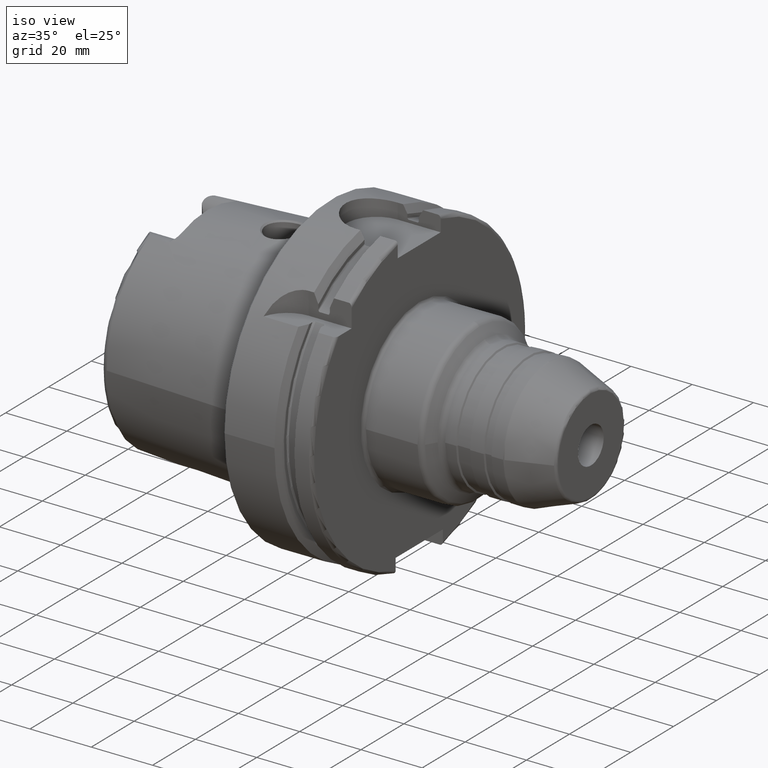
[diagram: clean part render]
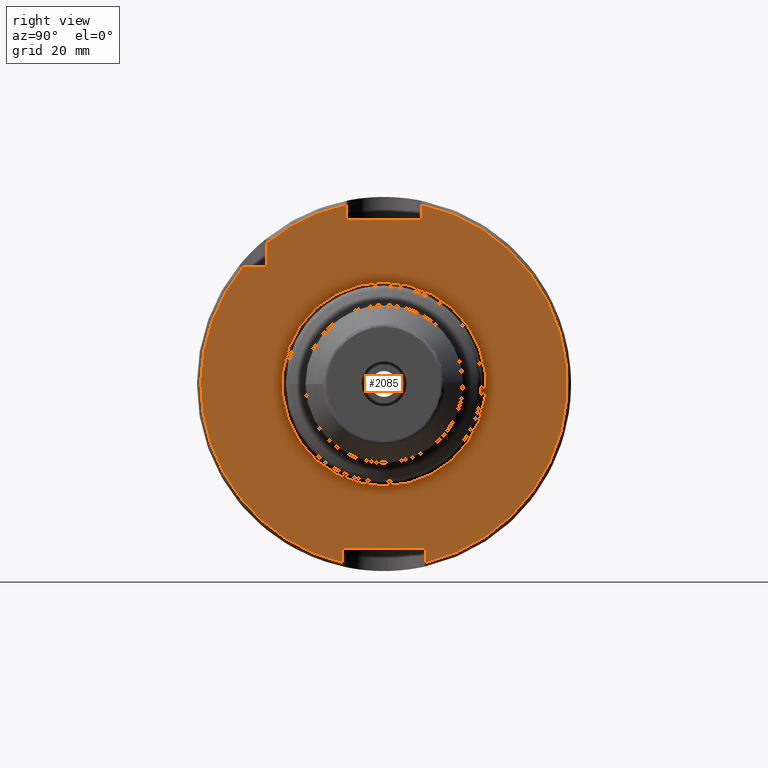
[diagram: tour spotlight — one face highlighted and labeled with its STEP entity id]
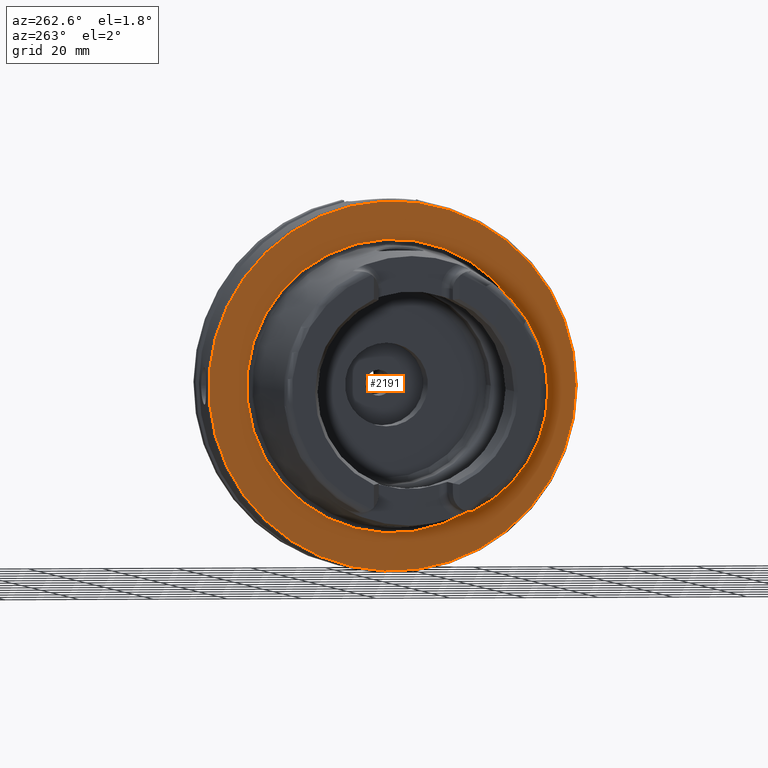
[diagram: tour spotlight — one face highlighted and labeled with its STEP entity id]
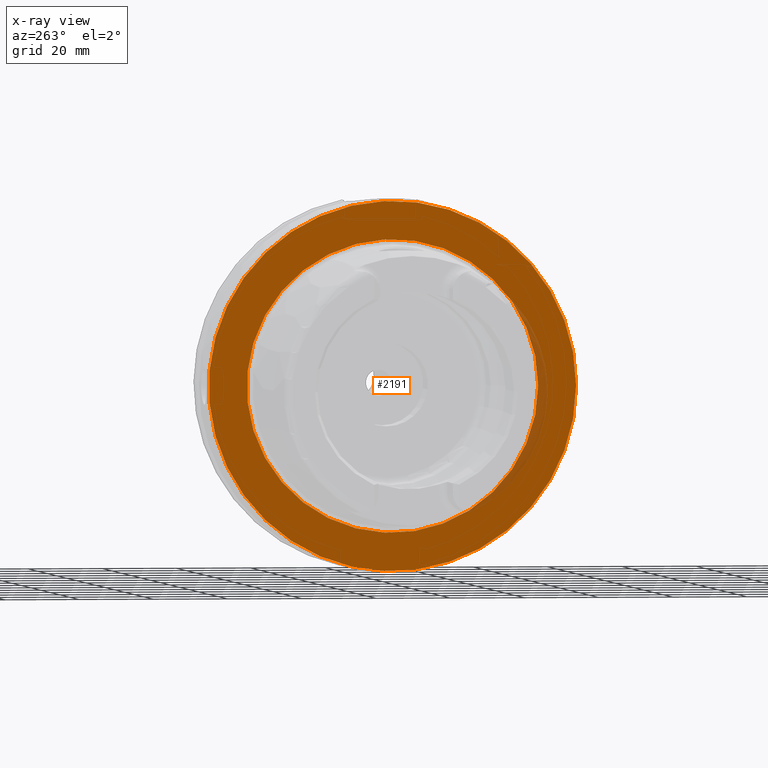
[diagram: x-ray of the same camera — body ghosted, this tour face saturated]
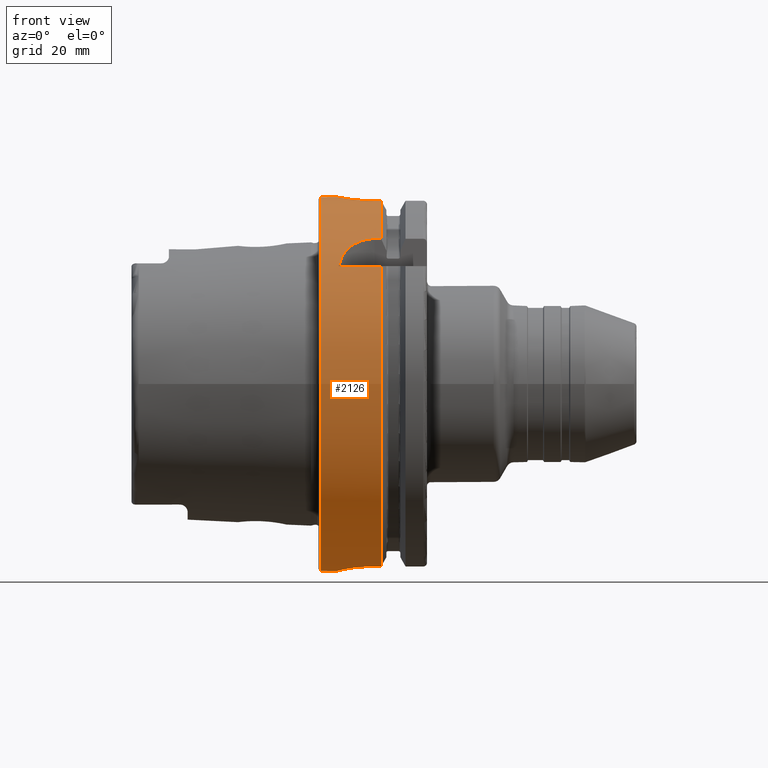
[diagram: tour spotlight — one face highlighted and labeled with its STEP entity id]
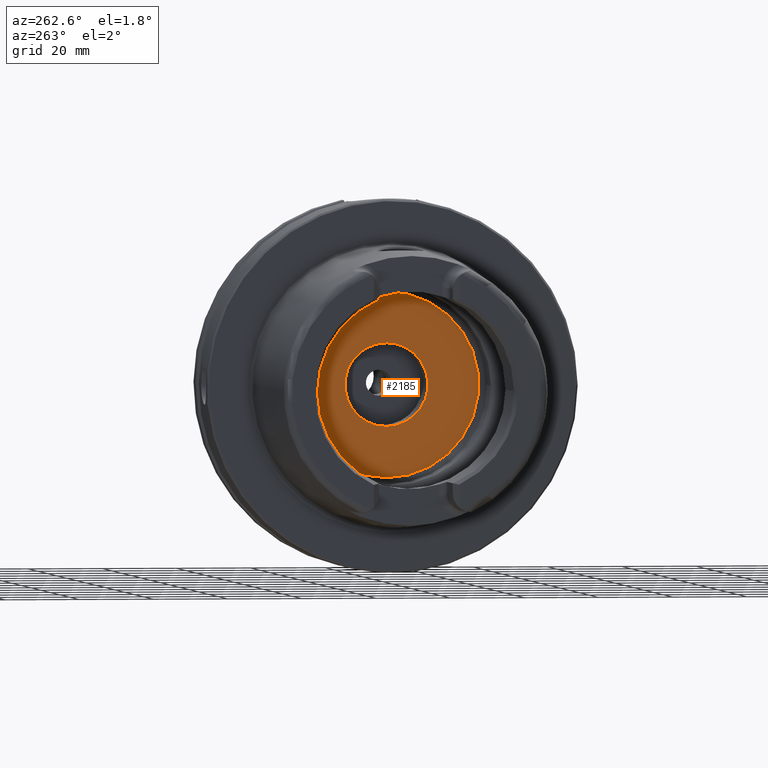
[diagram: tour spotlight — one face highlighted and labeled with its STEP entity id]
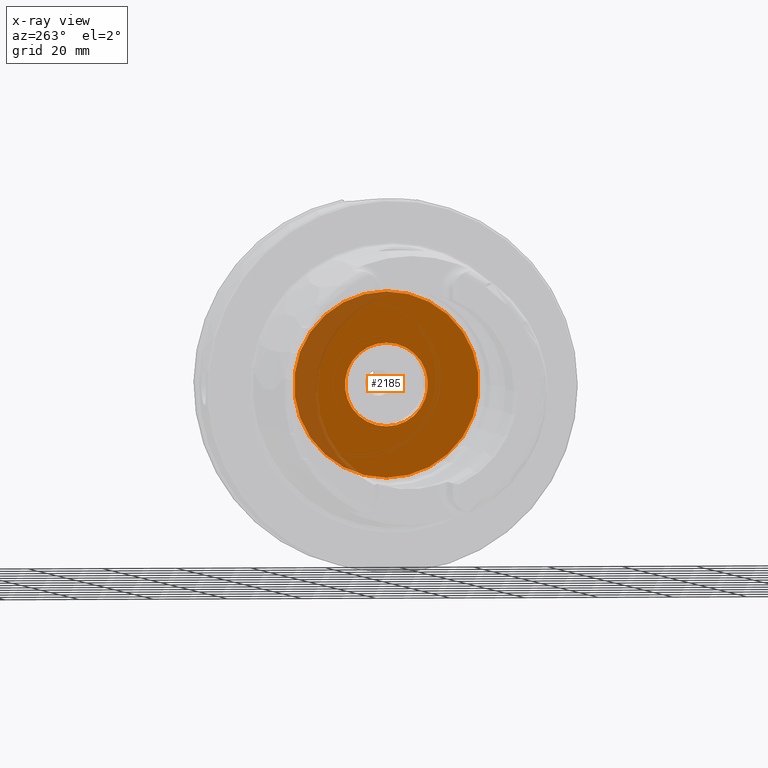
[diagram: x-ray of the same camera — body ghosted, this tour face saturated]
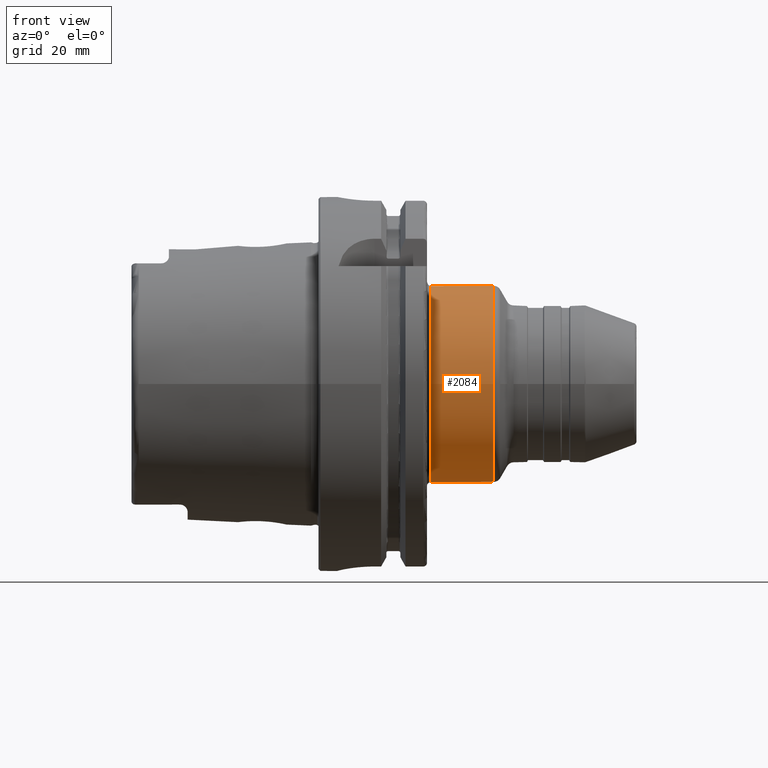
[diagram: tour spotlight — one face highlighted and labeled with its STEP entity id]
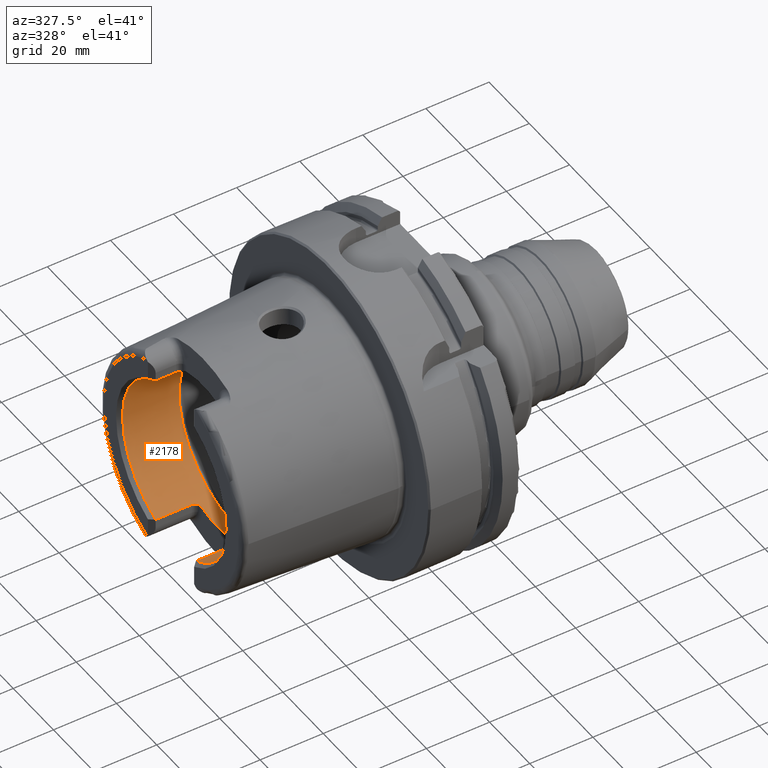
[diagram: tour spotlight — one face highlighted and labeled with its STEP entity id]
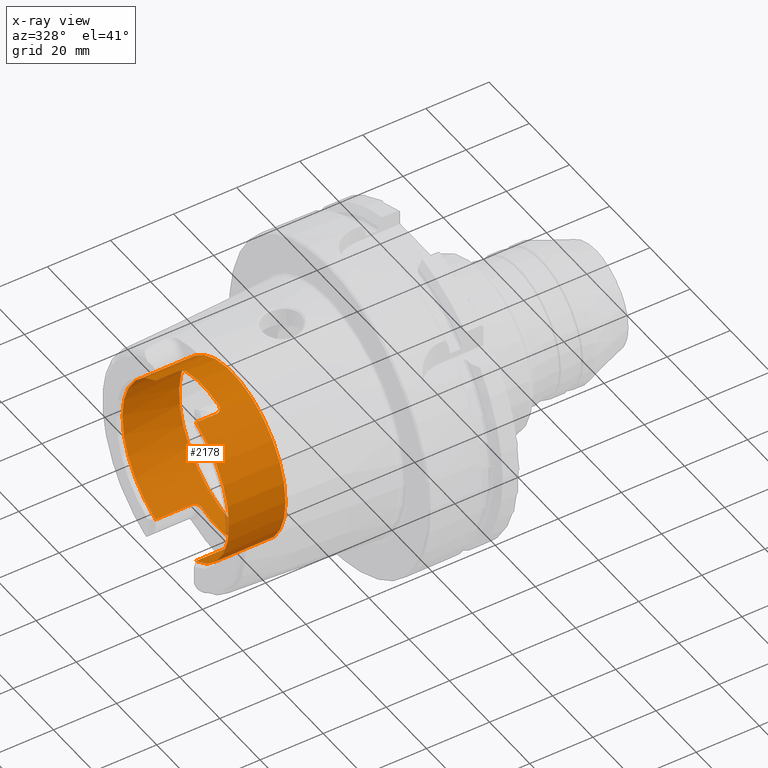
[diagram: x-ray of the same camera — body ghosted, this tour face saturated]
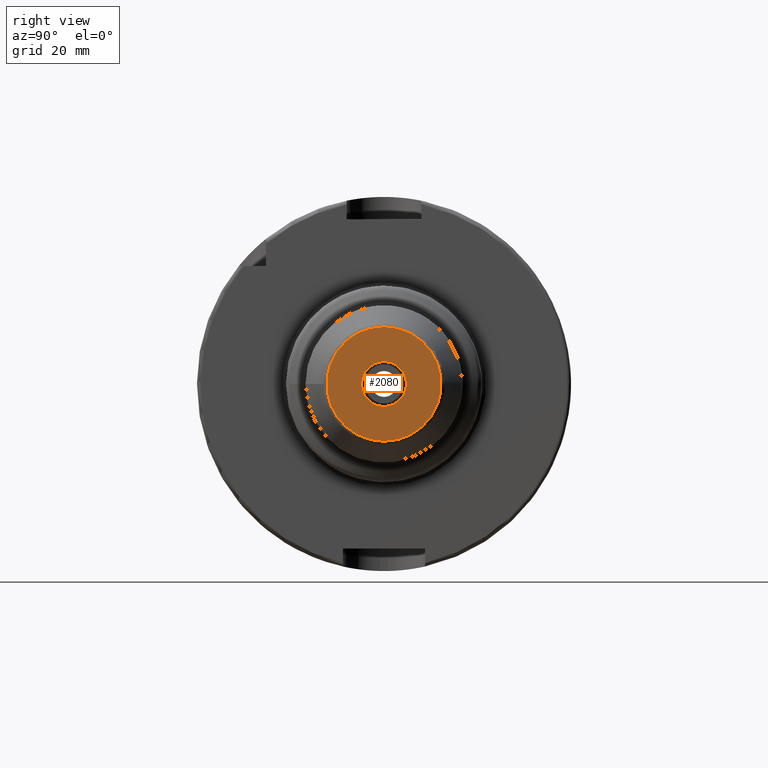
[diagram: tour spotlight — one face highlighted and labeled with its STEP entity id]
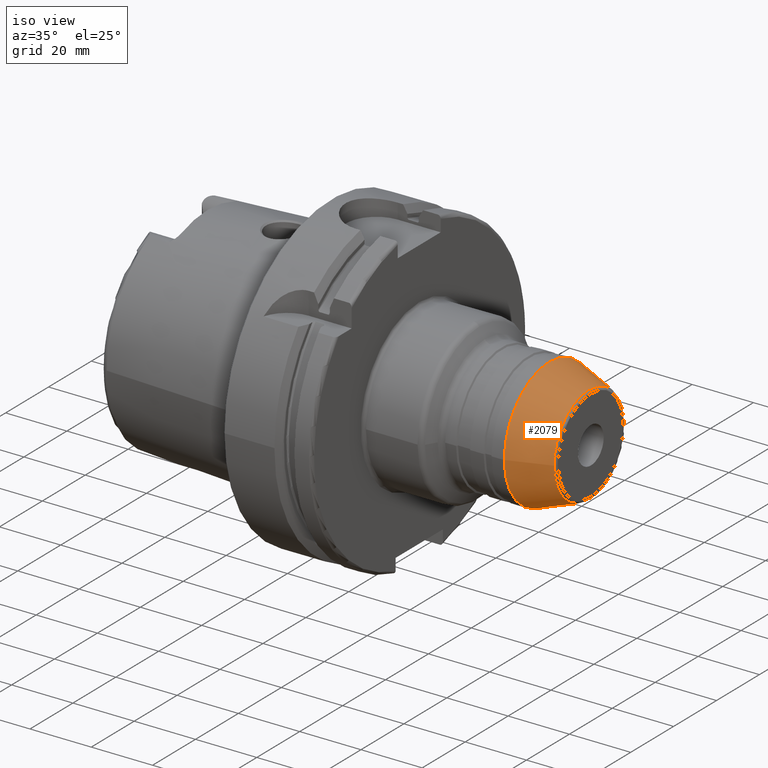
[diagram: tour spotlight — one face highlighted and labeled with its STEP entity id]
A machine part: a face-by-face anatomy tour. The part has 126 B-rep faces; the first image is the clean iso view, then the 8 largest visible faces are spotlighted one at a time (largest first), each with its STEP entity span.

Face 1 — right view, entity #2085. In plain terms, the highlighted planar face has unit normal (1, 0, 0).
Definition (entity closure, byte-faithful):
#94=FACE_BOUND('',#325,.T.);
#105=PLANE('',#2253);
#197=FACE_OUTER_BOUND('',#324,.T.);
#324=EDGE_LOOP('',(#1409,#1410,#1411,#1412,#1413,#1414,#1415,#1416,#1417,
#1418,#1419));
#325=EDGE_LOOP('',(#1420));
#456=LINE('',#3227,#567);
#457=LINE('',#3231,#568);
#458=LINE('',#3233,#569);
#459=LINE('',#3235,#570);
#460=LINE('',#3239,#571);
#461=LINE('',#3241,#572);
#462=LINE('',#3243,#573);
#463=LINE('',#3246,#574);
#567=VECTOR('',#2567,10.);
#568=VECTOR('',#2570,10.);
#569=VECTOR('',#2571,10.);
#570=VECTOR('',#2572,10.);
#571=VECTOR('',#2575,10.);
#572=VECTOR('',#2576,10.);
#573=VECTOR('',#2577,10.);
#574=VECTOR('',#2580,10.);
#689=CIRCLE('',#2248,27.25);
#693=CIRCLE('',#2254,49.);
#694=CIRCLE('',#2255,49.);
#695=CIRCLE('',#2256,49.);
#834=VERTEX_POINT('',#3214);
#837=VERTEX_POINT('',#3225);
#838=VERTEX_POINT('',#3226);
#839=VERTEX_POINT('',#3228);
#840=VERTEX_POINT('',#3230);
#841=VERTEX_POINT('',#3232);
#842=VERTEX_POINT('',#3234);
#843=VERTEX_POINT('',#3236);
#844=VERTEX_POINT('',#3238);
#845=VERTEX_POINT('',#3240);
#846=VERTEX_POINT('',#3242);
#847=VERTEX_POINT('',#3244);
#1054=EDGE_CURVE('',#834,#834,#689,.T.);
#1059=EDGE_CURVE('',#837,#838,#456,.T.);
#1060=EDGE_CURVE('',#838,#839,#693,.T.);
#1061=EDGE_CURVE('',#839,#840,#457,.T.);
#1062=EDGE_CURVE('',#840,#841,#458,.T.);
#1063=EDGE_CURVE('',#841,#842,#459,.T.);
#1064=EDGE_CURVE('',#842,#843,#694,.T.);
#1065=EDGE_CURVE('',#843,#844,#460,.T.);
#1066=EDGE_CURVE('',#844,#845,#461,.T.);
#1067=EDGE_CURVE('',#845,#846,#462,.T.);
#1068=EDGE_CURVE('',#846,#847,#695,.T.);
#1069=EDGE_CURVE('',#847,#837,#463,.T.);
#1409=ORIENTED_EDGE('',*,*,#1059,.T.);
#1410=ORIENTED_EDGE('',*,*,#1060,.T.);
#1411=ORIENTED_EDGE('',*,*,#1061,.T.);
#1412=ORIENTED_EDGE('',*,*,#1062,.T.);
#1413=ORIENTED_EDGE('',*,*,#1063,.T.);
#1414=ORIENTED_EDGE('',*,*,#1064,.T.);
#1415=ORIENTED_EDGE('',*,*,#1065,.T.);
#1416=ORIENTED_EDGE('',*,*,#1066,.T.);
#1417=ORIENTED_EDGE('',*,*,#1067,.T.);
#1418=ORIENTED_EDGE('',*,*,#1068,.T.);
#1419=ORIENTED_EDGE('',*,*,#1069,.T.);
#1420=ORIENTED_EDGE('',*,*,#1054,.F.);
#2085=ADVANCED_FACE('',(#197,#94),#105,.T.);
#2248=AXIS2_PLACEMENT_3D('',#3216,#2554,#2555);
#2253=AXIS2_PLACEMENT_3D('',#3224,#2565,#2566);
#2254=AXIS2_PLACEMENT_3D('',#3229,#2568,#2569);
#2255=AXIS2_PLACEMENT_3D('',#3237,#2573,#2574);
#2256=AXIS2_PLACEMENT_3D('',#3245,#2578,#2579);
#2554=DIRECTION('center_axis',(1.,0.,0.));
#2555=DIRECTION('ref_axis',(0.,-1.,-1.22464679914735E-16));
#2565=DIRECTION('center_axis',(1.,0.,0.));
#2566=DIRECTION('ref_axis',(0.,0.,-1.));
#2567=DIRECTION('',(0.,-1.,0.));
#2568=DIRECTION('center_axis',(1.,0.,0.));
#2569=DIRECTION('ref_axis',(0.,0.,-1.));
#2570=DIRECTION('',(0.,0.,1.));
#2571=DIRECTION('',(0.,1.,0.));
#2572=DIRECTION('',(0.,0.,-1.));
#2573=DIRECTION('center_axis',(1.,0.,0.));
#2574=DIRECTION('ref_axis',(0.,0.,-1.));
#2575=DIRECTION('',(0.,0.,-1.));
#2576=DIRECTION('',(0.,-1.,0.));
#2577=DIRECTION('',(0.,0.,1.));
#2578=DIRECTION('center_axis',(1.,0.,0.));
#2579=DIRECTION('ref_axis',(0.,0.,-1.));
#2580=DIRECTION('',(0.,0.,-1.));
#3214=CARTESIAN_POINT('',(29.,-3.33716252767654E-15,-27.25));
#3216=CARTESIAN_POINT('Origin',(29.,0.,0.));
#3224=CARTESIAN_POINT('Origin',(29.,0.,0.));
#3225=CARTESIAN_POINT('',(29.,-31.5,31.5));
#3226=CARTESIAN_POINT('',(29.,-37.5333185316726,31.5));
#3227=CARTESIAN_POINT('',(29.,-18.25,31.5));
#3228=CARTESIAN_POINT('',(29.,-11.,-47.7493455452533));
#3229=CARTESIAN_POINT('Origin',(29.,0.,0.));
#3230=CARTESIAN_POINT('',(29.,-11.,-44.));
#3231=CARTESIAN_POINT('',(29.,-11.,-22.));
#3232=CARTESIAN_POINT('',(29.,11.,-44.));
#3233=CARTESIAN_POINT('',(29.,-5.55111512312578E-16,-44.));
#3234=CARTESIAN_POINT('',(29.,11.,-47.7493455452533));
#3235=CARTESIAN_POINT('',(29.,11.,-22.));
#3236=CARTESIAN_POINT('',(29.,10.,47.9687398208458));
#3237=CARTESIAN_POINT('Origin',(29.,0.,0.));
#3238=CARTESIAN_POINT('',(29.,10.,44.));
#3239=CARTESIAN_POINT('',(29.,10.,22.));
#3240=CARTESIAN_POINT('',(29.,-10.,44.));
#3241=CARTESIAN_POINT('',(29.,0.,44.));
#3242=CARTESIAN_POINT('',(29.,-10.,47.9687398208458));
#3243=CARTESIAN_POINT('',(29.,-10.,22.));
#3244=CARTESIAN_POINT('',(29.,-31.5,37.5333185316726));
#3245=CARTESIAN_POINT('Origin',(29.,0.,0.));
#3246=CARTESIAN_POINT('',(29.,-31.5,15.75));

Face 2 — auxiliary view, entity #2191. An x-ray twin of the same camera follows (body ghosted, this face saturated) — the face is partly hidden behind the body. In plain terms, the highlighted planar face has unit normal (-1, 0, 0).
Definition (entity closure, byte-faithful):
#103=FACE_BOUND('',#440,.T.);
#139=PLANE('',#2482);
#303=FACE_OUTER_BOUND('',#439,.T.);
#439=EDGE_LOOP('',(#1988));
#440=EDGE_LOOP('',(#1989));
#809=CIRCLE('',#2481,39.2747800249997);
#810=CIRCLE('',#2483,49.5);
#1031=VERTEX_POINT('',#4697);
#1032=VERTEX_POINT('',#4701);
#1355=EDGE_CURVE('',#1031,#1031,#809,.T.);
#1356=EDGE_CURVE('',#1032,#1032,#810,.T.);
#1988=ORIENTED_EDGE('',*,*,#1356,.F.);
#1989=ORIENTED_EDGE('',*,*,#1355,.T.);
#2191=ADVANCED_FACE('',(#303,#103),#139,.T.);
#2481=AXIS2_PLACEMENT_3D('',#4699,#3125,#3126);
#2482=AXIS2_PLACEMENT_3D('',#4700,#3127,#3128);
#2483=AXIS2_PLACEMENT_3D('',#4702,#3129,#3130);
#3125=DIRECTION('center_axis',(1.,0.,0.));
#3126=DIRECTION('ref_axis',(0.,0.,-1.));
#3127=DIRECTION('center_axis',(-1.,0.,0.));
#3128=DIRECTION('ref_axis',(0.,0.,1.));
#3129=DIRECTION('center_axis',(1.,0.,0.));
#3130=DIRECTION('ref_axis',(0.,0.,-1.));
#4697=CARTESIAN_POINT('',(-1.04950770296597E-15,-39.2747800249997,-4.80977336448322E-15));
#4699=CARTESIAN_POINT('Origin',(0.,0.,0.));
#4700=CARTESIAN_POINT('Origin',(0.,49.5,0.));
#4701=CARTESIAN_POINT('',(1.28369537222284E-15,-49.5,-6.0620016557794E-15));
#4702=CARTESIAN_POINT('Origin',(0.,0.,0.));

Face 3 — front view, entity #2126. In plain terms, the highlighted cylindrical surface (bore or boss wall) has radius 50 mm, axis along (1, 0, 0).
Definition (entity closure, byte-faithful):
#56=B_SPLINE_CURVE_WITH_KNOTS('',3,(#4053,#4054,#4055,#4056,#4057,#4058,
#4059,#4060,#4061,#4062,#4063,#4064,#4065,#4066,#4067,#4068,#4069,#4070,
#4071,#4072,#4073,#4074,#4075,#4076,#4077,#4078),.UNSPECIFIED.,.F.,.F.,
(4,2,2,2,2,2,2,2,2,2,2,2,4),(0.,0.188478911015149,0.376957822030298,0.565436091508923,
0.753914360987547,0.942392630466172,1.1308708999448,1.31934981095995,1.50782872197509,
1.69630763299024,1.88478654400539,2.07326481348402,2.26174308296264),
 .UNSPECIFIED.);
#57=B_SPLINE_CURVE_WITH_KNOTS('',3,(#4079,#4080,#4081,#4082,#4083,#4084,
#4085,#4086,#4087,#4088),.UNSPECIFIED.,.F.,.F.,(4,2,2,2,4),(2.26174308296264,
2.45022135244127,2.63869962191989,2.82717853293504,3.01565744395019),
 .UNSPECIFIED.);
#58=B_SPLINE_CURVE_WITH_KNOTS('',3,(#4092,#4093,#4094,#4095,#4096,#4097,
#4098,#4099,#4100,#4101,#4102,#4103),.UNSPECIFIED.,.F.,.F.,(4,2,2,2,2,4),
(1.13213255574021,1.59216410027009,1.87572541272146,2.15928672517283,2.38471683342296,
2.61014694167308),.UNSPECIFIED.);
#65=B_SPLINE_CURVE_WITH_KNOTS('',3,(#4216,#4217,#4218,#4219,#4220,#4221,
#4222,#4223,#4224,#4225,#4226,#4227,#4228,#4229,#4230,#4231,#4232,#4233),
 .UNSPECIFIED.,.F.,.F.,(4,2,2,2,2,2,2,2,4),(0.,0.377795255890194,0.755590511780389,
1.13336459804459,1.51113868430879,1.88891277057299,2.26668685683718,2.64448211272738,
3.02227736861757),.UNSPECIFIED.);
#66=B_SPLINE_CURVE_WITH_KNOTS('',3,(#4241,#4242,#4243,#4244,#4245,#4246,
#4247,#4248,#4249,#4250),.UNSPECIFIED.,.F.,.F.,(4,2,2,2,4),(0.,0.377863193874929,
0.755726387749858,1.13417752669663,1.51262866564341),.UNSPECIFIED.);
#67=B_SPLINE_CURVE_WITH_KNOTS('',3,(#4254,#4255,#4256,#4257,#4258,#4259,
#4260,#4261,#4262,#4263),.UNSPECIFIED.,.F.,.F.,(4,2,2,2,4),(1.50996806152532,
1.8884192004721,2.26687033941887,2.6447335332938,3.02259672716873),
 .UNSPECIFIED.);
#99=FACE_BOUND('',#371,.T.);
#238=FACE_OUTER_BOUND('',#370,.T.);
#370=EDGE_LOOP('',(#1650,#1651,#1652,#1653,#1654,#1655,#1656,#1657,#1658,
#1659,#1660,#1661,#1662,#1663,#1664,#1665,#1666,#1667));
#371=EDGE_LOOP('',(#1668,#1669));
#501=LINE('',#4109,#612);
#507=LINE('',#4161,#618);
#512=LINE('',#4214,#623);
#513=LINE('',#4235,#624);
#514=LINE('',#4239,#625);
#515=LINE('',#4265,#626);
#516=LINE('',#4269,#627);
#612=VECTOR('',#2806,10.);
#618=VECTOR('',#2814,10.);
#623=VECTOR('',#2823,10.);
#624=VECTOR('',#2824,10.);
#625=VECTOR('',#2827,10.);
#626=VECTOR('',#2830,10.);
#627=VECTOR('',#2833,50.);
#745=CIRCLE('',#2353,50.);
#746=CIRCLE('',#2354,50.);
#747=CIRCLE('',#2355,50.);
#748=CIRCLE('',#2356,50.);
#749=CIRCLE('',#2357,50.);
#750=CIRCLE('',#2358,50.);
#931=VERTEX_POINT('',#4050);
#932=VERTEX_POINT('',#4052);
#933=VERTEX_POINT('',#4090);
#934=VERTEX_POINT('',#4091);
#936=VERTEX_POINT('',#4108);
#945=VERTEX_POINT('',#4160);
#954=VERTEX_POINT('',#4211);
#955=VERTEX_POINT('',#4213);
#956=VERTEX_POINT('',#4215);
#957=VERTEX_POINT('',#4234);
#958=VERTEX_POINT('',#4236);
#959=VERTEX_POINT('',#4238);
#960=VERTEX_POINT('',#4240);
#961=VERTEX_POINT('',#4251);
#962=VERTEX_POINT('',#4253);
#963=VERTEX_POINT('',#4264);
#964=VERTEX_POINT('',#4266);
#965=VERTEX_POINT('',#4268);
#1189=EDGE_CURVE('',#932,#931,#56,.T.);
#1190=EDGE_CURVE('',#931,#932,#57,.T.);
#1191=EDGE_CURVE('',#933,#934,#58,.T.);
#1194=EDGE_CURVE('',#934,#936,#501,.T.);
#1205=EDGE_CURVE('',#945,#933,#507,.T.);
#1215=EDGE_CURVE('',#954,#936,#745,.T.);
#1216=EDGE_CURVE('',#954,#955,#512,.T.);
#1217=EDGE_CURVE('',#955,#956,#65,.T.);
#1218=EDGE_CURVE('',#956,#957,#513,.T.);
#1219=EDGE_CURVE('',#958,#957,#746,.T.);
#1220=EDGE_CURVE('',#958,#959,#514,.T.);
#1221=EDGE_CURVE('',#959,#960,#66,.T.);
#1222=EDGE_CURVE('',#960,#961,#747,.T.);
#1223=EDGE_CURVE('',#961,#962,#67,.T.);
#1224=EDGE_CURVE('',#962,#963,#515,.T.);
#1225=EDGE_CURVE('',#964,#963,#748,.T.);
#1226=EDGE_CURVE('',#964,#965,#516,.T.);
#1227=EDGE_CURVE('',#965,#965,#749,.T.);
#1228=EDGE_CURVE('',#945,#964,#750,.T.);
#1650=ORIENTED_EDGE('',*,*,#1205,.T.);
#1651=ORIENTED_EDGE('',*,*,#1191,.T.);
#1652=ORIENTED_EDGE('',*,*,#1194,.T.);
#1653=ORIENTED_EDGE('',*,*,#1215,.F.);
#1654=ORIENTED_EDGE('',*,*,#1216,.T.);
#1655=ORIENTED_EDGE('',*,*,#1217,.T.);
#1656=ORIENTED_EDGE('',*,*,#1218,.T.);
#1657=ORIENTED_EDGE('',*,*,#1219,.F.);
#1658=ORIENTED_EDGE('',*,*,#1220,.T.);
#1659=ORIENTED_EDGE('',*,*,#1221,.T.);
#1660=ORIENTED_EDGE('',*,*,#1222,.T.);
#1661=ORIENTED_EDGE('',*,*,#1223,.T.);
#1662=ORIENTED_EDGE('',*,*,#1224,.T.);
#1663=ORIENTED_EDGE('',*,*,#1225,.F.);
#1664=ORIENTED_EDGE('',*,*,#1226,.T.);
#1665=ORIENTED_EDGE('',*,*,#1227,.T.);
#1666=ORIENTED_EDGE('',*,*,#1226,.F.);
#1667=ORIENTED_EDGE('',*,*,#1228,.F.);
#1668=ORIENTED_EDGE('',*,*,#1189,.T.);
#1669=ORIENTED_EDGE('',*,*,#1190,.T.);
#2055=CYLINDRICAL_SURFACE('',#2352,50.);
#2126=ADVANCED_FACE('',(#238,#99),#2055,.T.);
#2352=AXIS2_PLACEMENT_3D('',#4210,#2819,#2820);
#2353=AXIS2_PLACEMENT_3D('',#4212,#2821,#2822);
#2354=AXIS2_PLACEMENT_3D('',#4237,#2825,#2826);
#2355=AXIS2_PLACEMENT_3D('',#4252,#2828,#2829);
#2356=AXIS2_PLACEMENT_3D('',#4267,#2831,#2832);
#2357=AXIS2_PLACEMENT_3D('',#4270,#2834,#2835);
#2358=AXIS2_PLACEMENT_3D('',#4271,#2836,#2837);
#2806=DIRECTION('',(1.,0.,0.));
#2814=DIRECTION('',(-1.,0.,0.));
#2819=DIRECTION('center_axis',(1.,0.,0.));
#2820=DIRECTION('ref_axis',(0.,1.,0.));
#2821=DIRECTION('center_axis',(1.,0.,0.));
#2822=DIRECTION('ref_axis',(0.,0.,-1.));
#2823=DIRECTION('',(-1.,0.,0.));
#2824=DIRECTION('',(1.,0.,0.));
#2825=DIRECTION('center_axis',(1.,0.,0.));
#2826=DIRECTION('ref_axis',(0.,0.,-1.));
#2827=DIRECTION('',(-1.,0.,0.));
#2828=DIRECTION('center_axis',(-1.,0.,0.));
#2829=DIRECTION('ref_axis',(0.,1.,0.));
#2830=DIRECTION('',(1.,0.,0.));
#2831=DIRECTION('center_axis',(1.,0.,0.));
#2832=DIRECTION('ref_axis',(0.,0.,-1.));
#2833=DIRECTION('',(-1.,0.,0.));
#2834=DIRECTION('center_axis',(1.,0.,0.));
#2835=DIRECTION('ref_axis',(0.,0.,-1.));
#2836=DIRECTION('center_axis',(1.,0.,0.));
#2837=DIRECTION('ref_axis',(0.,0.,-1.));
#4050=CARTESIAN_POINT('',(12.,50.,-6.12323399573677E-16));
#4052=CARTESIAN_POINT('',(6.99999999999999,49.749371855331,5.));
#4053=CARTESIAN_POINT('Ctrl Pts',(6.99999999999999,49.749371855331,5.));
#4054=CARTESIAN_POINT('Ctrl Pts',(6.37173696328283,49.749371855331,5.));
#4055=CARTESIAN_POINT('Ctrl Pts',(5.70188570880885,49.7624993987098,4.87435544587055));
#4056=CARTESIAN_POINT('Ctrl Pts',(4.4701142477173,49.8098541153698,4.36395693611591));
#4057=CARTESIAN_POINT('Ctrl Pts',(3.90815809537484,49.8433908660961,3.97922590724033));
#4058=CARTESIAN_POINT('Ctrl Pts',(3.02077560297968,49.9062957431473,3.09184341484517));
#4059=CARTESIAN_POINT('Ctrl Pts',(2.63604339567929,49.9397591808605,2.52988660036719));
#4060=CARTESIAN_POINT('Ctrl Pts',(2.12564400622109,49.9869460568296,1.29811292154946));
#4061=CARTESIAN_POINT('Ctrl Pts',(1.99999999999999,50.,0.628260898262081));
#4062=CARTESIAN_POINT('Ctrl Pts',(1.99999999999999,50.,-0.628260898262082));
#4063=CARTESIAN_POINT('Ctrl Pts',(2.12564400622109,49.9869460568296,-1.29811292154946));
#4064=CARTESIAN_POINT('Ctrl Pts',(2.63604339567929,49.9397591808605,-2.52988660036719));
#4065=CARTESIAN_POINT('Ctrl Pts',(3.02077560297968,49.9062957431473,-3.09184341484517));
#4066=CARTESIAN_POINT('Ctrl Pts',(3.90815809537484,49.8433908660961,-3.97922590724033));
#4067=CARTESIAN_POINT('Ctrl Pts',(4.4701142477173,49.8098541153698,-4.36395693611591));
#4068=CARTESIAN_POINT('Ctrl Pts',(5.70188570880885,49.7624993987098,-4.87435544587055));
#4069=CARTESIAN_POINT('Ctrl Pts',(6.37173696328283,49.749371855331,-5.));
#4070=CARTESIAN_POINT('Ctrl Pts',(7.62826303671716,49.749371855331,-5.));
#4071=CARTESIAN_POINT('Ctrl Pts',(8.29811429119113,49.7624993987098,-4.87435544587055));
#4072=CARTESIAN_POINT('Ctrl Pts',(9.52988575228269,49.8098541153698,-4.36395693611591));
#4073=CARTESIAN_POINT('Ctrl Pts',(10.0918419046251,49.8433908660961,-3.97922590724033));
#4074=CARTESIAN_POINT('Ctrl Pts',(10.9792243970203,49.9062957431473,-3.09184341484517));
#4075=CARTESIAN_POINT('Ctrl Pts',(11.3639566043207,49.9397591808605,-2.52988660036719));
#4076=CARTESIAN_POINT('Ctrl Pts',(11.8743559937789,49.9869460568296,-1.29811292154947));
#4077=CARTESIAN_POINT('Ctrl Pts',(12.,50.,-0.628260898262083));
#4078=CARTESIAN_POINT('Ctrl Pts',(12.,50.,-5.55111512312578E-16));
#4079=CARTESIAN_POINT('Ctrl Pts',(12.,50.,-5.55111512312578E-16));
#4080=CARTESIAN_POINT('Ctrl Pts',(12.,50.,0.628260898262082));
#4081=CARTESIAN_POINT('Ctrl Pts',(11.8743559937789,49.9869460568296,1.29811292154946));
#4082=CARTESIAN_POINT('Ctrl Pts',(11.3639566043207,49.9397591808605,2.52988660036719));
#4083=CARTESIAN_POINT('Ctrl Pts',(10.9792243970203,49.9062957431473,3.09184341484517));
#4084=CARTESIAN_POINT('Ctrl Pts',(10.0918419046251,49.8433908660961,3.97922590724033));
#4085=CARTESIAN_POINT('Ctrl Pts',(9.52988575228269,49.8098541153698,4.36395693611591));
#4086=CARTESIAN_POINT('Ctrl Pts',(8.29811429119113,49.7624993987098,4.87435544587055));
#4087=CARTESIAN_POINT('Ctrl Pts',(7.62826303671716,49.749371855331,5.));
#4088=CARTESIAN_POINT('Ctrl Pts',(6.99999999999999,49.749371855331,5.));
#4090=CARTESIAN_POINT('',(5.36310214079494,-38.8297566307078,31.5));
#4091=CARTESIAN_POINT('',(15.,-31.5,38.8297566307078));
#4092=CARTESIAN_POINT('Ctrl Pts',(5.36310214079494,-38.8297566307078,31.5));
#4093=CARTESIAN_POINT('Ctrl Pts',(5.63795050776221,-37.8378299510303,32.722738779917));
#4094=CARTESIAN_POINT('Ctrl Pts',(6.08245260240086,-36.8264130955983,33.8486741193789));
#4095=CARTESIAN_POINT('Ctrl Pts',(7.14730321206235,-35.2667182945212,35.4540138707062));
#4096=CARTESIAN_POINT('Ctrl Pts',(7.68113760815893,-34.6306580359392,36.0741351437033));
#4097=CARTESIAN_POINT('Ctrl Pts',(8.97436758466638,-33.4722127660808,37.1515365058173));
#4098=CARTESIAN_POINT('Ctrl Pts',(9.73574998094174,-32.9521170857844,37.6088911783762));
#4099=CARTESIAN_POINT('Ctrl Pts',(11.1521999725134,-32.2432973482077,38.2170233500259));
#4100=CARTESIAN_POINT('Ctrl Pts',(11.8888981504148,-31.9629772872452,38.4503075998006));
#4101=CARTESIAN_POINT('Ctrl Pts',(13.4369856471743,-31.5908755949743,38.7566077888176));
#4102=CARTESIAN_POINT('Ctrl Pts',(14.2485663058329,-31.5,38.8297566307078));
#4103=CARTESIAN_POINT('Ctrl Pts',(15.,-31.5,38.8297566307078));
#4108=CARTESIAN_POINT('',(16.7379709790786,-31.5,38.8297566307078));
#4109=CARTESIAN_POINT('',(8.61898548953931,-31.5,38.8297566307078));
#4160=CARTESIAN_POINT('',(16.7379709790786,-38.8297566307078,31.5));
#4161=CARTESIAN_POINT('',(8.61898548953931,-38.8297566307078,31.5));
#4210=CARTESIAN_POINT('Origin',(8.61898548953931,0.,0.));
#4211=CARTESIAN_POINT('',(16.7379709790786,-10.,48.9897948556636));
#4212=CARTESIAN_POINT('Origin',(16.7379709790786,0.,0.));
#4213=CARTESIAN_POINT('',(15.,-10.,48.9897948556636));
#4214=CARTESIAN_POINT('',(8.61898548953931,-10.,48.9897948556636));
#4215=CARTESIAN_POINT('',(15.,10.,48.9897948556636));
#4216=CARTESIAN_POINT('Ctrl Pts',(15.,-10.,48.9897948556636));
#4217=CARTESIAN_POINT('Ctrl Pts',(13.740682480366,-10.,48.9897948556636));
#4218=CARTESIAN_POINT('Ctrl Pts',(12.3998222283811,-9.74762796248614,49.0433876618447));
#4219=CARTESIAN_POINT('Ctrl Pts',(9.93707994969945,-8.72605417648382,49.2354150792771));
#4220=CARTESIAN_POINT('Ctrl Pts',(8.81489539818993,-7.95703102192089,49.3709085101933));
#4221=CARTESIAN_POINT('Ctrl Pts',(7.04301862271998,-6.18515424645094,49.6240337638318));
#4222=CARTESIAN_POINT('Ctrl Pts',(6.27395658455242,-5.06294861197626,49.7583347151863));
#4223=CARTESIAN_POINT('Ctrl Pts',(5.25235457764165,-2.60013306081865,49.9476188647081));
#4224=CARTESIAN_POINT('Ctrl Pts',(4.99999999999999,-1.259246954214,50.));
#4225=CARTESIAN_POINT('Ctrl Pts',(4.99999999999999,1.259246954214,50.));
#4226=CARTESIAN_POINT('Ctrl Pts',(5.25235457764165,2.60013306081865,49.9476188647081));
#4227=CARTESIAN_POINT('Ctrl Pts',(6.27395658455242,5.06294861197626,49.7583347151863));
#4228=CARTESIAN_POINT('Ctrl Pts',(7.04301862271998,6.18515424645094,49.6240337638318));
#4229=CARTESIAN_POINT('Ctrl Pts',(8.81489539818993,7.95703102192089,49.3709085101933));
#4230=CARTESIAN_POINT('Ctrl Pts',(9.93707994969945,8.72605417648382,49.2354150792771));
#4231=CARTESIAN_POINT('Ctrl Pts',(12.3998222283811,9.74762796248614,49.0433876618447));
#4232=CARTESIAN_POINT('Ctrl Pts',(13.740682480366,10.,48.9897948556636));
#4233=CARTESIAN_POINT('Ctrl Pts',(15.,10.,48.9897948556636));
#4234=CARTESIAN_POINT('',(16.7379709790786,10.,48.9897948556636));
#4235=CARTESIAN_POINT('',(8.61898548953931,10.,48.9897948556636));
#4236=CARTESIAN_POINT('',(16.7379709790786,11.,-48.7749935930288));
#4237=CARTESIAN_POINT('Origin',(16.7379709790786,0.,0.));
#4238=CARTESIAN_POINT('',(15.,11.,-48.7749935930288));
#4239=CARTESIAN_POINT('',(8.61898548953931,11.,-48.7749935930288));
#4240=CARTESIAN_POINT('',(4.99999999999999,0.999999999999997,-49.9899989998));
#4241=CARTESIAN_POINT('Ctrl Pts',(15.,11.,-48.7749935930288));
#4242=CARTESIAN_POINT('Ctrl Pts',(13.7404560204169,11.,-48.7749935930288));
#4243=CARTESIAN_POINT('Ctrl Pts',(12.3998213084084,10.7475295248871,-48.8340306344483));
#4244=CARTESIAN_POINT('Ctrl Pts',(9.9383361278342,9.72667325975831,-49.0475663096823));
#4245=CARTESIAN_POINT('Ctrl Pts',(8.81713821454868,8.95850056252305,-49.1990678796225));
#4246=CARTESIAN_POINT('Ctrl Pts',(7.04551978193545,7.18842719108522,-49.4887060645896));
#4247=CARTESIAN_POINT('Ctrl Pts',(6.27594389465425,6.06650925178,-49.6460359942126));
#4248=CARTESIAN_POINT('Ctrl Pts',(5.25307325920197,3.60309260864685,-49.8853600567865));
#4249=CARTESIAN_POINT('Ctrl Pts',(4.99999999999999,2.26125147049483,-49.9647689238702));
#4250=CARTESIAN_POINT('Ctrl Pts',(4.99999999999999,1.,-49.9899989998));
#4251=CARTESIAN_POINT('',(4.99999999999999,-1.00000000000001,-49.9899989998));
#4252=CARTESIAN_POINT('Origin',(4.99999999999999,0.,0.));
#4253=CARTESIAN_POINT('',(15.,-11.,-48.7749935930288));
#4254=CARTESIAN_POINT('Ctrl Pts',(4.99999999999999,-1.,-49.9899989998));
#4255=CARTESIAN_POINT('Ctrl Pts',(4.99999999999999,-2.26125147049483,-49.9647689238702));
#4256=CARTESIAN_POINT('Ctrl Pts',(5.25307325920197,-3.60309260864686,-49.8853600567865));
#4257=CARTESIAN_POINT('Ctrl Pts',(6.27594389465425,-6.06650925178001,-49.6460359942126));
#4258=CARTESIAN_POINT('Ctrl Pts',(7.04551978193545,-7.18842719108522,-49.4887060645896));
#4259=CARTESIAN_POINT('Ctrl Pts',(8.81713821454868,-8.95850056252306,-49.1990678796225));
#4260=CARTESIAN_POINT('Ctrl Pts',(9.9383361278342,-9.72667325975831,-49.0475663096823));
#4261=CARTESIAN_POINT('Ctrl Pts',(12.3998213084084,-10.7475295248871,-48.8340306344483));
#4262=CARTESIAN_POINT('Ctrl Pts',(13.7404560204169,-11.,-48.7749935930288));
#4263=CARTESIAN_POINT('Ctrl Pts',(15.,-11.,-48.7749935930288));
#4264=CARTESIAN_POINT('',(16.7379709790786,-11.,-48.7749935930288));
#4265=CARTESIAN_POINT('',(8.61898548953931,-11.,-48.7749935930288));
#4266=CARTESIAN_POINT('',(16.7379709790786,-50.,-6.12323399573677E-15));
#4267=CARTESIAN_POINT('Origin',(16.7379709790786,0.,0.));
#4268=CARTESIAN_POINT('',(0.5,-50.,-6.12323399573677E-15));
#4269=CARTESIAN_POINT('',(8.61898548953931,-50.,-6.12323399573677E-15));
#4270=CARTESIAN_POINT('Origin',(0.5,0.,0.));
#4271=CARTESIAN_POINT('Origin',(16.7379709790786,0.,0.));

Face 4 — auxiliary view, entity #2185. An x-ray twin of the same camera follows (body ghosted, this face saturated) — the face is partly hidden behind the body. In plain terms, the highlighted planar face has unit normal (1, 0, 0).
Definition (entity closure, byte-faithful):
#102=FACE_BOUND('',#433,.T.);
#138=PLANE('',#2466);
#297=FACE_OUTER_BOUND('',#432,.T.);
#432=EDGE_LOOP('',(#1958));
#433=EDGE_LOOP('',(#1959));
#793=CIRCLE('',#2455,11.188101);
#800=CIRCLE('',#2467,24.9);
#1018=VERTEX_POINT('',#4654);
#1024=VERTEX_POINT('',#4674);
#1334=EDGE_CURVE('',#1018,#1018,#793,.T.);
#1343=EDGE_CURVE('',#1024,#1024,#800,.T.);
#1958=ORIENTED_EDGE('',*,*,#1343,.T.);
#1959=ORIENTED_EDGE('',*,*,#1334,.T.);
#2185=ADVANCED_FACE('',(#297,#102),#138,.F.);
#2455=AXIS2_PLACEMENT_3D('',#4655,#3068,#3069);
#2466=AXIS2_PLACEMENT_3D('',#4673,#3092,#3093);
#2467=AXIS2_PLACEMENT_3D('',#4675,#3094,#3095);
#3068=DIRECTION('center_axis',(1.,0.,0.));
#3069=DIRECTION('ref_axis',(0.,0.,1.));
#3092=DIRECTION('center_axis',(1.,0.,0.));
#3093=DIRECTION('ref_axis',(0.,0.,-1.));
#3094=DIRECTION('center_axis',(-1.,0.,0.));
#3095=DIRECTION('ref_axis',(0.,0.,1.));
#4654=CARTESIAN_POINT('',(12.5,-1.37014720781873E-15,-11.188101));
#4655=CARTESIAN_POINT('Origin',(12.5,0.,0.));
#4673=CARTESIAN_POINT('Origin',(12.5,24.9,0.));
#4674=CARTESIAN_POINT('',(12.5,-3.04937052987691E-15,-24.9));
#4675=CARTESIAN_POINT('Origin',(12.5,0.,0.));

Face 5 — front view, entity #2084. In plain terms, the highlighted cylindrical surface (bore or boss wall) has radius 26.25 mm, axis along (1, 0, 0).
Definition (entity closure, byte-faithful):
#196=FACE_OUTER_BOUND('',#323,.T.);
#323=EDGE_LOOP('',(#1403,#1404,#1405,#1406,#1407,#1408));
#455=LINE('',#3222,#566);
#566=VECTOR('',#2562,26.25);
#687=CIRCLE('',#2246,26.25);
#690=CIRCLE('',#2249,26.25);
#691=CIRCLE('',#2251,26.25);
#692=CIRCLE('',#2252,26.25);
#832=VERTEX_POINT('',#3211);
#833=VERTEX_POINT('',#3212);
#835=VERTEX_POINT('',#3219);
#836=VERTEX_POINT('',#3220);
#1052=EDGE_CURVE('',#832,#833,#687,.T.);
#1055=EDGE_CURVE('',#833,#832,#690,.T.);
#1056=EDGE_CURVE('',#835,#836,#691,.T.);
#1057=EDGE_CURVE('',#835,#832,#455,.T.);
#1058=EDGE_CURVE('',#836,#835,#692,.T.);
#1403=ORIENTED_EDGE('',*,*,#1056,.F.);
#1404=ORIENTED_EDGE('',*,*,#1057,.T.);
#1405=ORIENTED_EDGE('',*,*,#1055,.F.);
#1406=ORIENTED_EDGE('',*,*,#1052,.F.);
#1407=ORIENTED_EDGE('',*,*,#1057,.F.);
#1408=ORIENTED_EDGE('',*,*,#1058,.F.);
#2040=CYLINDRICAL_SURFACE('',#2250,26.25);
#2084=ADVANCED_FACE('',(#196),#2040,.T.);
#2246=AXIS2_PLACEMENT_3D('',#3213,#2550,#2551);
#2249=AXIS2_PLACEMENT_3D('',#3217,#2556,#2557);
#2250=AXIS2_PLACEMENT_3D('',#3218,#2558,#2559);
#2251=AXIS2_PLACEMENT_3D('',#3221,#2560,#2561);
#2252=AXIS2_PLACEMENT_3D('',#3223,#2563,#2564);
#2550=DIRECTION('center_axis',(-1.,0.,0.));
#2551=DIRECTION('ref_axis',(0.,-1.,-1.22464679914735E-16));
#2556=DIRECTION('center_axis',(-1.,0.,0.));
#2557=DIRECTION('ref_axis',(0.,-1.,-1.22464679914735E-16));
#2558=DIRECTION('center_axis',(1.,0.,0.));
#2559=DIRECTION('ref_axis',(0.,1.,0.));
#2560=DIRECTION('center_axis',(1.,0.,0.));
#2561=DIRECTION('ref_axis',(0.,-1.,1.83697019872103E-16));
#2562=DIRECTION('',(-1.,0.,0.));
#2563=DIRECTION('center_axis',(1.,0.,0.));
#2564=DIRECTION('ref_axis',(0.,-1.,1.83697019872103E-16));
#3211=CARTESIAN_POINT('',(30.,-26.25,-3.2146978477618E-15));
#3212=CARTESIAN_POINT('',(30.,-3.2146978477618E-15,-26.25));
#3213=CARTESIAN_POINT('Origin',(30.,0.,0.));
#3217=CARTESIAN_POINT('Origin',(30.,0.,0.));
#3218=CARTESIAN_POINT('Origin',(38.4844555433772,0.,0.));
#3219=CARTESIAN_POINT('',(46.8142105483752,-26.25,-3.2146978477618E-15));
#3220=CARTESIAN_POINT('',(46.8142105483752,-3.2146978477618E-15,26.25));
#3221=CARTESIAN_POINT('Origin',(46.8142105483752,0.,0.));
#3222=CARTESIAN_POINT('',(38.4844555433772,-26.25,-3.2146978477618E-15));
#3223=CARTESIAN_POINT('Origin',(46.8142105483752,0.,0.));

Face 6 — auxiliary view, entity #2178. An x-ray twin of the same camera follows (body ghosted, this face saturated) — the face is partly hidden behind the body. In plain terms, the highlighted cylindrical surface (bore or boss wall) has radius 26.5 mm, axis along (-1, 0, 0).
Definition (entity closure, byte-faithful):
#80=B_SPLINE_CURVE_WITH_KNOTS('',3,(#4537,#4538,#4539,#4540,#4541,#4542,
#4543,#4544,#4545,#4546),.UNSPECIFIED.,.F.,.F.,(4,2,2,2,4),(0.307245873696209,
0.387318131676521,0.467390389656833,0.542677307505841,0.617964225354849),
 .UNSPECIFIED.);
#81=B_SPLINE_CURVE_WITH_KNOTS('',3,(#4555,#4556,#4557,#4558,#4559,#4560,
#4561,#4562,#4563,#4564),.UNSPECIFIED.,.F.,.F.,(4,2,2,2,4),(0.61796422535485,
0.694491364966707,0.771018504578565,0.849854597041439,0.928690689504313),
 .UNSPECIFIED.);
#82=B_SPLINE_CURVE_WITH_KNOTS('',3,(#4577,#4578,#4579,#4580,#4581,#4582,
#4583,#4584,#4585,#4586),.UNSPECIFIED.,.F.,.F.,(4,2,2,2,4),(0.617964225354849,
0.693251143203857,0.768538061052865,0.848610319033177,0.928682577013489),
 .UNSPECIFIED.);
#83=B_SPLINE_CURVE_WITH_KNOTS('',3,(#4606,#4607,#4608,#4609,#4610,#4611,
#4612,#4613,#4614,#4615),.UNSPECIFIED.,.F.,.F.,(4,2,2,2,4),(0.307245873696209,
0.387318131676521,0.467390389656833,0.542677307505841,0.617964225354849),
 .UNSPECIFIED.);
#290=FACE_OUTER_BOUND('',#423,.T.);
#423=EDGE_LOOP('',(#1917,#1918,#1919,#1920,#1921,#1922,#1923,#1924,#1925,
#1926,#1927,#1928,#1929,#1930,#1931,#1932,#1933));
#479=LINE('',#3321,#590);
#487=LINE('',#3396,#598);
#491=LINE('',#3460,#602);
#550=LINE('',#4602,#661);
#554=LINE('',#4650,#665);
#590=VECTOR('',#2670,10.);
#598=VECTOR('',#2716,10.);
#602=VECTOR('',#2738,10.);
#661=VECTOR('',#3017,10.);
#665=VECTOR('',#3061,26.5);
#718=CIRCLE('',#2304,26.5);
#719=CIRCLE('',#2305,26.5);
#782=CIRCLE('',#2429,26.5);
#787=CIRCLE('',#2441,26.5);
#788=CIRCLE('',#2444,26.5);
#791=CIRCLE('',#2451,26.5);
#792=CIRCLE('',#2452,26.5);
#866=VERTEX_POINT('',#3311);
#869=VERTEX_POINT('',#3319);
#878=VERTEX_POINT('',#3368);
#880=VERTEX_POINT('',#3374);
#881=VERTEX_POINT('',#3376);
#887=VERTEX_POINT('',#3394);
#893=VERTEX_POINT('',#3427);
#898=VERTEX_POINT('',#3459);
#1005=VERTEX_POINT('',#4535);
#1007=VERTEX_POINT('',#4554);
#1011=VERTEX_POINT('',#4575);
#1012=VERTEX_POINT('',#4576);
#1014=VERTEX_POINT('',#4596);
#1016=VERTEX_POINT('',#4647);
#1017=VERTEX_POINT('',#4648);
#1105=EDGE_CURVE('',#866,#869,#479,.T.);
#1118=EDGE_CURVE('',#880,#881,#718,.T.);
#1119=EDGE_CURVE('',#881,#878,#719,.T.);
#1128=EDGE_CURVE('',#880,#887,#487,.T.);
#1141=EDGE_CURVE('',#898,#893,#491,.T.);
#1299=EDGE_CURVE('',#1005,#887,#80,.T.);
#1303=EDGE_CURVE('',#898,#1007,#81,.T.);
#1309=EDGE_CURVE('',#1011,#1012,#82,.T.);
#1315=EDGE_CURVE('',#1014,#1012,#782,.T.);
#1318=EDGE_CURVE('',#1011,#878,#550,.T.);
#1321=EDGE_CURVE('',#1014,#869,#83,.T.);
#1325=EDGE_CURVE('',#1005,#1007,#787,.T.);
#1327=EDGE_CURVE('',#866,#893,#788,.T.);
#1331=EDGE_CURVE('',#1016,#1017,#791,.T.);
#1332=EDGE_CURVE('',#1016,#881,#554,.T.);
#1333=EDGE_CURVE('',#1017,#1016,#792,.T.);
#1917=ORIENTED_EDGE('',*,*,#1331,.F.);
#1918=ORIENTED_EDGE('',*,*,#1332,.T.);
#1919=ORIENTED_EDGE('',*,*,#1118,.F.);
#1920=ORIENTED_EDGE('',*,*,#1128,.T.);
#1921=ORIENTED_EDGE('',*,*,#1299,.F.);
#1922=ORIENTED_EDGE('',*,*,#1325,.T.);
#1923=ORIENTED_EDGE('',*,*,#1303,.F.);
#1924=ORIENTED_EDGE('',*,*,#1141,.T.);
#1925=ORIENTED_EDGE('',*,*,#1327,.F.);
#1926=ORIENTED_EDGE('',*,*,#1105,.T.);
#1927=ORIENTED_EDGE('',*,*,#1321,.F.);
#1928=ORIENTED_EDGE('',*,*,#1315,.T.);
#1929=ORIENTED_EDGE('',*,*,#1309,.F.);
#1930=ORIENTED_EDGE('',*,*,#1318,.T.);
#1931=ORIENTED_EDGE('',*,*,#1119,.F.);
#1932=ORIENTED_EDGE('',*,*,#1332,.F.);
#1933=ORIENTED_EDGE('',*,*,#1333,.F.);
#2071=CYLINDRICAL_SURFACE('',#2450,26.5);
#2178=ADVANCED_FACE('',(#290),#2071,.F.);
#2304=AXIS2_PLACEMENT_3D('',#3377,#2694,#2695);
#2305=AXIS2_PLACEMENT_3D('',#3378,#2696,#2697);
#2429=AXIS2_PLACEMENT_3D('',#4597,#3010,#3011);
#2441=AXIS2_PLACEMENT_3D('',#4624,#3038,#3039);
#2444=AXIS2_PLACEMENT_3D('',#4639,#3044,#3045);
#2450=AXIS2_PLACEMENT_3D('',#4646,#3057,#3058);
#2451=AXIS2_PLACEMENT_3D('',#4649,#3059,#3060);
#2452=AXIS2_PLACEMENT_3D('',#4651,#3062,#3063);
#2670=DIRECTION('',(1.,0.,0.));
#2694=DIRECTION('center_axis',(1.,0.,0.));
#2695=DIRECTION('ref_axis',(0.,-1.,0.));
#2696=DIRECTION('center_axis',(1.,0.,0.));
#2697=DIRECTION('ref_axis',(0.,-1.,0.));
#2716=DIRECTION('',(1.,0.,0.));
#2738=DIRECTION('',(-1.,0.,0.));
#3010=DIRECTION('center_axis',(-1.,0.,0.));
#3011=DIRECTION('ref_axis',(0.,1.,0.));
#3017=DIRECTION('',(-1.,0.,0.));
#3038=DIRECTION('center_axis',(-1.,0.,0.));
#3039=DIRECTION('ref_axis',(0.,1.,0.));
#3044=DIRECTION('center_axis',(1.,0.,0.));
#3045=DIRECTION('ref_axis',(0.,-1.,0.));
#3057=DIRECTION('center_axis',(-1.,0.,0.));
#3058=DIRECTION('ref_axis',(0.,1.,0.));
#3059=DIRECTION('center_axis',(-1.,0.,0.));
#3060=DIRECTION('ref_axis',(0.,0.,1.));
#3061=DIRECTION('',(-1.,0.,0.));
#3062=DIRECTION('center_axis',(-1.,0.,0.));
#3063=DIRECTION('ref_axis',(0.,0.,1.));
#3311=CARTESIAN_POINT('',(-48.5,10.01,-24.5367051577835));
#3319=CARTESIAN_POINT('',(-37.,10.01,-24.5367051577835));
#3321=CARTESIAN_POINT('',(-40.2903629710818,10.01,-24.5367051577835));
#3368=CARTESIAN_POINT('',(-48.5,-10.01,-24.5367051577835));
#3374=CARTESIAN_POINT('',(-48.5,-10.01,24.5367051577835));
#3376=CARTESIAN_POINT('',(-48.5,-26.5,3.24531401774049E-15));
#3377=CARTESIAN_POINT('Origin',(-48.5,0.,0.));
#3378=CARTESIAN_POINT('Origin',(-48.5,0.,0.));
#3394=CARTESIAN_POINT('',(-42.,-10.01,24.5367051577835));
#3396=CARTESIAN_POINT('',(-40.2903629710818,-10.01,24.5367051577835));
#3427=CARTESIAN_POINT('',(-48.5,10.01,24.5367051577835));
#3459=CARTESIAN_POINT('',(-42.,10.01,24.5367051577835));
#3460=CARTESIAN_POINT('',(-40.2903629710818,10.01,24.5367051577835));
#4535=CARTESIAN_POINT('',(-40.,-8.01,25.2604414054862));
#4537=CARTESIAN_POINT('Ctrl Pts',(-40.,-8.01,25.2604414054862));
#4538=CARTESIAN_POINT('Ctrl Pts',(-40.,-8.26442271458071,25.1797648285777));
#4539=CARTESIAN_POINT('Ctrl Pts',(-40.0513332778729,-8.53503831367686,25.0892968127514));
#4540=CARTESIAN_POINT('Ctrl Pts',(-40.2604388709541,-9.03317850506395,24.9142806373643));
#4541=CARTESIAN_POINT('Ctrl Pts',(-40.4182028025644,-9.2607746884821,24.8299262887475));
#4542=CARTESIAN_POINT('Ctrl Pts',(-40.7762398849713,-9.61038047170956,24.6966285655713));
#4543=CARTESIAN_POINT('Ctrl Pts',(-40.996584045901,-9.75993653512726,24.6374761492843));
#4544=CARTESIAN_POINT('Ctrl Pts',(-41.4829332858843,-9.95981108540838,24.557356442995));
#4545=CARTESIAN_POINT('Ctrl Pts',(-41.74904360717,-10.01,24.5367051577835));
#4546=CARTESIAN_POINT('Ctrl Pts',(-42.,-10.01,24.5367051577835));
#4554=CARTESIAN_POINT('',(-40.,8.01,25.2604414054862));
#4555=CARTESIAN_POINT('Ctrl Pts',(-42.,10.01,24.5367051577835));
#4556=CARTESIAN_POINT('Ctrl Pts',(-41.7449095346271,10.01,24.5367051577835));
#4557=CARTESIAN_POINT('Ctrl Pts',(-41.4747619014646,9.95816285425487,24.5580391842641));
#4558=CARTESIAN_POINT('Ctrl Pts',(-40.9823460284033,9.75229566196282,24.640515927451));
#4559=CARTESIAN_POINT('Ctrl Pts',(-40.7599680829949,9.59839520774108,24.7013267120605));
#4560=CARTESIAN_POINT('Ctrl Pts',(-40.4063494382929,9.24477656303909,24.8358806096526));
#4561=CARTESIAN_POINT('Ctrl Pts',(-40.2529543645221,9.01930384320105,24.9192727261742));
#4562=CARTESIAN_POINT('Ctrl Pts',(-40.049776768453,8.52719637786957,25.0919293188873));
#4563=CARTESIAN_POINT('Ctrl Pts',(-40.,8.26049490494288,25.1810103236462));
#4564=CARTESIAN_POINT('Ctrl Pts',(-40.,8.01,25.2604414054862));
#4575=CARTESIAN_POINT('',(-37.,-10.01,-24.5367051577835));
#4576=CARTESIAN_POINT('',(-35.,-8.01,-25.2604414054862));
#4577=CARTESIAN_POINT('Ctrl Pts',(-37.,-10.01,-24.5367051577835));
#4578=CARTESIAN_POINT('Ctrl Pts',(-36.74904360717,-10.01,-24.5367051577835));
#4579=CARTESIAN_POINT('Ctrl Pts',(-36.4829332858843,-9.95981108540838,-24.557356442995));
#4580=CARTESIAN_POINT('Ctrl Pts',(-35.9965840459011,-9.75993653512726,-24.6374761492843));
#4581=CARTESIAN_POINT('Ctrl Pts',(-35.7762398849713,-9.61038047170956,-24.6966285655713));
#4582=CARTESIAN_POINT('Ctrl Pts',(-35.4182028025644,-9.2607746884821,-24.8299262887475));
#4583=CARTESIAN_POINT('Ctrl Pts',(-35.2604388709541,-9.03317850506395,-24.9142806373643));
#4584=CARTESIAN_POINT('Ctrl Pts',(-35.0513332778729,-8.53503831367686,-25.0892968127514));
#4585=CARTESIAN_POINT('Ctrl Pts',(-35.,-8.26442271458071,-25.1797648285777));
#4586=CARTESIAN_POINT('Ctrl Pts',(-35.,-8.01,-25.2604414054862));
#4596=CARTESIAN_POINT('',(-35.,8.01,-25.2604414054862));
#4597=CARTESIAN_POINT('Origin',(-35.,0.,0.));
#4602=CARTESIAN_POINT('',(-40.2903629710818,-10.01,-24.5367051577835));
#4606=CARTESIAN_POINT('Ctrl Pts',(-35.,8.01,-25.2604414054862));
#4607=CARTESIAN_POINT('Ctrl Pts',(-35.,8.26442271458071,-25.1797648285777));
#4608=CARTESIAN_POINT('Ctrl Pts',(-35.0513332778729,8.53503831367686,-25.0892968127514));
#4609=CARTESIAN_POINT('Ctrl Pts',(-35.2604388709541,9.03317850506395,-24.9142806373643));
#4610=CARTESIAN_POINT('Ctrl Pts',(-35.4182028025644,9.2607746884821,-24.8299262887475));
#4611=CARTESIAN_POINT('Ctrl Pts',(-35.7762398849713,9.61038047170956,-24.6966285655713));
#4612=CARTESIAN_POINT('Ctrl Pts',(-35.9965840459011,9.75993653512726,-24.6374761492843));
#4613=CARTESIAN_POINT('Ctrl Pts',(-36.4829332858843,9.95981108540838,-24.557356442995));
#4614=CARTESIAN_POINT('Ctrl Pts',(-36.74904360717,10.01,-24.5367051577835));
#4615=CARTESIAN_POINT('Ctrl Pts',(-37.,10.01,-24.5367051577835));
#4624=CARTESIAN_POINT('Origin',(-40.,0.,0.));
#4639=CARTESIAN_POINT('Origin',(-48.5,0.,0.));
#4646=CARTESIAN_POINT('Origin',(-40.2903629710818,0.,0.));
#4647=CARTESIAN_POINT('',(-30.5807259421637,-26.5,3.24531401774049E-15));
#4648=CARTESIAN_POINT('',(-30.5807259421637,-3.24531401774049E-15,-26.5));
#4649=CARTESIAN_POINT('Origin',(-30.5807259421637,0.,0.));
#4650=CARTESIAN_POINT('',(-40.2903629710818,-26.5,3.24531401774049E-15));
#4651=CARTESIAN_POINT('Origin',(-30.5807259421637,0.,0.));

Face 7 — right view, entity #2080. In plain terms, the highlighted planar face has unit normal (1, 0, 0).
Definition (entity closure, byte-faithful):
#93=FACE_BOUND('',#319,.T.);
#104=PLANE('',#2237);
#192=FACE_OUTER_BOUND('',#318,.T.);
#318=EDGE_LOOP('',(#1385));
#319=EDGE_LOOP('',(#1386));
#676=CIRCLE('',#2230,15.2997924617903);
#682=CIRCLE('',#2238,6.);
#823=VERTEX_POINT('',#3184);
#828=VERTEX_POINT('',#3198);
#1039=EDGE_CURVE('',#823,#823,#676,.T.);
#1046=EDGE_CURVE('',#828,#828,#682,.T.);
#1385=ORIENTED_EDGE('',*,*,#1039,.F.);
#1386=ORIENTED_EDGE('',*,*,#1046,.F.);
#2080=ADVANCED_FACE('',(#192,#93),#104,.T.);
#2230=AXIS2_PLACEMENT_3D('',#3185,#2516,#2517);
#2237=AXIS2_PLACEMENT_3D('',#3197,#2531,#2532);
#2238=AXIS2_PLACEMENT_3D('',#3199,#2533,#2534);
#2516=DIRECTION('center_axis',(-1.,0.,0.));
#2517=DIRECTION('ref_axis',(0.,-1.,1.83697019872103E-16));
#2531=DIRECTION('center_axis',(1.,0.,0.));
#2532=DIRECTION('ref_axis',(0.,0.,-1.));
#2533=DIRECTION('center_axis',(1.,0.,0.));
#2534=DIRECTION('ref_axis',(0.,0.,-1.));
#3184=CARTESIAN_POINT('',(85.,-1.87368418659503E-15,15.2997924617903));
#3185=CARTESIAN_POINT('Origin',(85.,0.,0.));
#3197=CARTESIAN_POINT('Origin',(85.,6.,0.));
#3198=CARTESIAN_POINT('',(85.,-6.,-7.34788079488412E-16));
#3199=CARTESIAN_POINT('Origin',(85.,0.,0.));

Face 8 — iso view, entity #2079. In plain terms, the highlighted conical surface has half-angle 20 deg.
Definition (entity closure, byte-faithful):
#142=CONICAL_SURFACE('',#2234,18.5,0.349065850398866);
#191=FACE_OUTER_BOUND('',#317,.T.);
#317=EDGE_LOOP('',(#1379,#1380,#1381,#1382,#1383,#1384));
#453=LINE('',#3193,#564);
#564=VECTOR('',#2526,18.5);
#678=CIRCLE('',#2232,16.2394850825762);
#679=CIRCLE('',#2233,16.2394850825762);
#680=CIRCLE('',#2235,20.9396926207859);
#681=CIRCLE('',#2236,20.9396926207859);
#824=VERTEX_POINT('',#3186);
#825=VERTEX_POINT('',#3188);
#826=VERTEX_POINT('',#3192);
#827=VERTEX_POINT('',#3194);
#1041=EDGE_CURVE('',#824,#825,#678,.T.);
#1042=EDGE_CURVE('',#825,#824,#679,.T.);
#1043=EDGE_CURVE('',#825,#826,#453,.T.);
#1044=EDGE_CURVE('',#827,#826,#680,.T.);
#1045=EDGE_CURVE('',#826,#827,#681,.T.);
#1379=ORIENTED_EDGE('',*,*,#1042,.F.);
#1380=ORIENTED_EDGE('',*,*,#1043,.T.);
#1381=ORIENTED_EDGE('',*,*,#1044,.F.);
#1382=ORIENTED_EDGE('',*,*,#1045,.F.);
#1383=ORIENTED_EDGE('',*,*,#1043,.F.);
#1384=ORIENTED_EDGE('',*,*,#1041,.F.);
#2079=ADVANCED_FACE('',(#191),#142,.T.);
#2232=AXIS2_PLACEMENT_3D('',#3189,#2520,#2521);
#2233=AXIS2_PLACEMENT_3D('',#3190,#2522,#2523);
#2234=AXIS2_PLACEMENT_3D('',#3191,#2524,#2525);
#2235=AXIS2_PLACEMENT_3D('',#3195,#2527,#2528);
#2236=AXIS2_PLACEMENT_3D('',#3196,#2529,#2530);
#2520=DIRECTION('center_axis',(1.,0.,0.));
#2521=DIRECTION('ref_axis',(0.,-1.,3.06161699786838E-17));
#2522=DIRECTION('center_axis',(1.,0.,0.));
#2523=DIRECTION('ref_axis',(0.,-1.,3.06161699786838E-17));
#2524=DIRECTION('center_axis',(-1.,0.,0.));
#2525=DIRECTION('ref_axis',(0.,1.,0.));
#2526=DIRECTION('',(-0.939692620785909,-0.342020143325668,-4.18853873767699E-17));
#2527=DIRECTION('center_axis',(-1.,0.,0.));
#2528=DIRECTION('ref_axis',(0.,-1.,3.06161699786838E-17));
#2529=DIRECTION('center_axis',(-1.,0.,0.));
#2530=DIRECTION('ref_axis',(0.,-1.,3.06161699786838E-17));
#3186=CARTESIAN_POINT('',(84.3420201433257,-1.98876334261781E-15,16.2394850825762));
#3188=CARTESIAN_POINT('',(84.3420201433257,-16.2394850825762,-1.98876334261781E-15));
#3189=CARTESIAN_POINT('Origin',(84.3420201433257,0.,-2.48595417827227E-15));
#3190=CARTESIAN_POINT('Origin',(84.3420201433257,0.,-2.48595417827227E-15));
#3191=CARTESIAN_POINT('Origin',(78.1313064513634,0.,0.));
#3192=CARTESIAN_POINT('',(71.4283060653441,-20.9396926207859,-2.56437275431749E-15));
#3193=CARTESIAN_POINT('',(78.1313064513634,-18.5,-2.2655965784226E-15));
#3194=CARTESIAN_POINT('',(71.4283060653441,-2.56437275431749E-15,20.9396926207859));
#3195=CARTESIAN_POINT('Origin',(71.4283060653441,0.,-3.20546594289686E-15));
#3196=CARTESIAN_POINT('Origin',(71.4283060653441,0.,-3.20546594289686E-15));